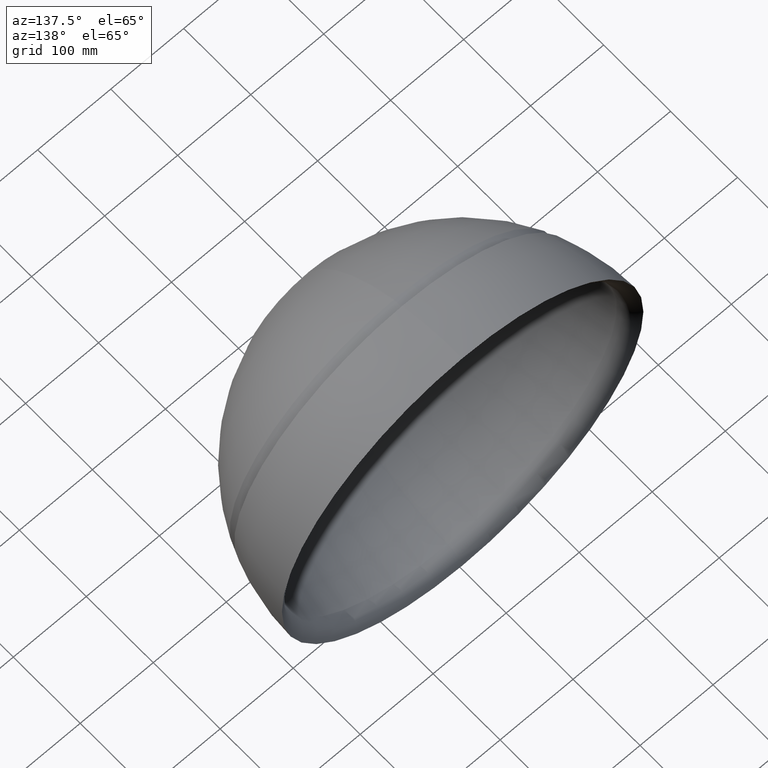
[diagram: clean part render]
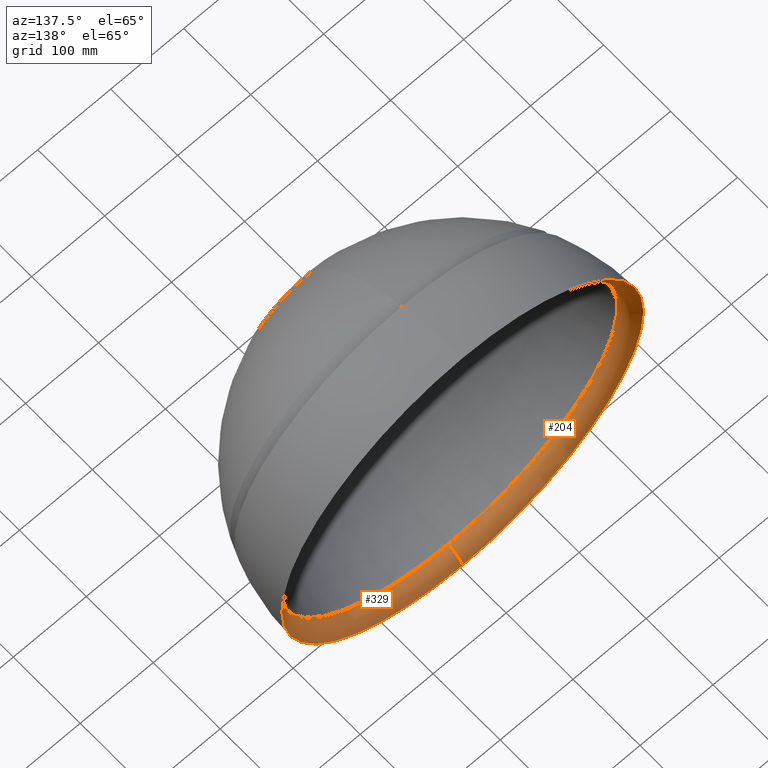
[diagram: same view with one multi-face feature highlighted, each face labeled with its STEP entity id]
A machine part, auxiliary view. The highlighted faces form ONE feature: a constant-radius fillet chain: 2 tangent blend faces with common blend radius 26.9572 mm. The faces share edges in the B-rep.
Their STEP definitions:
[1] entity #329 (Torus):
#14 = CIRCLE ( 'NONE', #197, 247.5000000000000000 ) ;
#28 = DIRECTION ( 'NONE',  ( 0.0000000000000000000, 0.0000000000000000000, -1.000000000000000000 ) ) ;
#39 = EDGE_LOOP ( 'NONE', ( #335, #185, #399, #343 ) ) ;
#66 = DIRECTION ( 'NONE',  ( 1.000000000000000000, 0.0000000000000000000, -1.224646799147353200E-016 ) ) ;
#69 = VERTEX_POINT ( 'NONE', #546 ) ;
#105 = CIRCLE ( 'NONE', #430, 231.3768428607466500 ) ;
#115 = VERTEX_POINT ( 'NONE', #380 ) ;
#122 = EDGE_CURVE ( 'NONE', #115, #133, #14, .T. ) ;
#126 = FACE_OUTER_BOUND ( 'NONE', #39, .T. ) ;
#133 = VERTEX_POINT ( 'NONE', #316 ) ;
#136 = TOROIDAL_SURFACE ( 'NONE', #154, 258.1938586785503800, 26.95717112091865200 ) ;
#154 = AXIS2_PLACEMENT_3D ( 'NONE', #222, #597, #28 ) ;
#185 = ORIENTED_EDGE ( 'NONE', *, *, #423, .T. ) ;
#197 = AXIS2_PLACEMENT_3D ( 'NONE', #277, #244, #307 ) ;
#208 = CIRCLE ( 'NONE', #481, 26.95717112091866600 ) ;
#211 = DIRECTION ( 'NONE',  ( -0.0000000000000000000, -1.000000000000000000, -0.0000000000000000000 ) ) ;
#222 = CARTESIAN_POINT ( 'NONE',  ( 0.0000000000000000000, 210.2546880923742100, 0.0000000000000000000 ) ) ;
#224 = DIRECTION ( 'NONE',  ( 0.0000000000000000000, 0.0000000000000000000, -1.000000000000000000 ) ) ;
#229 = CARTESIAN_POINT ( 'NONE',  ( 0.0000000000000000000, 213.0000000000000300, 0.0000000000000000000 ) ) ;
#230 = DIRECTION ( 'NONE',  ( 0.0000000000000000000, 0.0000000000000000000, 1.000000000000000000 ) ) ;
#238 = CARTESIAN_POINT ( 'NONE',  ( 0.0000000000000000000, 210.2546880923742100, -258.1938586785503800 ) ) ;
#244 = DIRECTION ( 'NONE',  ( -0.0000000000000000000, -1.000000000000000000, -0.0000000000000000000 ) ) ;
#277 = CARTESIAN_POINT ( 'NONE',  ( 0.0000000000000000000, 235.0000000000000300, 0.0000000000000000000 ) ) ;
#307 = DIRECTION ( 'NONE',  ( 0.0000000000000000000, 0.0000000000000000000, -1.000000000000000000 ) ) ;
#316 = CARTESIAN_POINT ( 'NONE',  ( 3.031000827889700600E-014, 235.0000000000000300, 247.5000000000001100 ) ) ;
#329 = ADVANCED_FACE ( 'NONE', ( #126 ), #136, .T. ) ;
#335 = ORIENTED_EDGE ( 'NONE', *, *, #527, .T. ) ;
#343 = ORIENTED_EDGE ( 'NONE', *, *, #470, .F. ) ;
#348 = DIRECTION ( 'NONE',  ( -1.000000000000000000, 0.0000000000000000000, 0.0000000000000000000 ) ) ;
#380 = CARTESIAN_POINT ( 'NONE',  ( 0.0000000000000000000, 235.0000000000000300, -247.5000000000001100 ) ) ;
#399 = ORIENTED_EDGE ( 'NONE', *, *, #122, .F. ) ;
#404 = CARTESIAN_POINT ( 'NONE',  ( 0.0000000000000000000, 213.0000000000000300, -231.3768428607466500 ) ) ;
#415 = CARTESIAN_POINT ( 'NONE',  ( 3.161962825901907600E-014, 210.2546880923742100, 258.1938586785503800 ) ) ;
#423 = EDGE_CURVE ( 'NONE', #69, #133, #429, .T. ) ;
#429 = CIRCLE ( 'NONE', #501, 26.95717112091866600 ) ;
#430 = AXIS2_PLACEMENT_3D ( 'NONE', #229, #211, #224 ) ;
#466 = DIRECTION ( 'NONE',  ( -1.224646799147352200E-016, 0.0000000000000000000, -1.000000000000000000 ) ) ;
#470 = EDGE_CURVE ( 'NONE', #596, #115, #208, .T. ) ;
#481 = AXIS2_PLACEMENT_3D ( 'NONE', #238, #348, #230 ) ;
#501 = AXIS2_PLACEMENT_3D ( 'NONE', #415, #66, #466 ) ;
#527 = EDGE_CURVE ( 'NONE', #596, #69, #105, .T. ) ;
#546 = CARTESIAN_POINT ( 'NONE',  ( 2.932274963976017900E-014, 213.0000000000000300, 231.3768428607466800 ) ) ;
#596 = VERTEX_POINT ( 'NONE', #404 ) ;
#597 = DIRECTION ( 'NONE',  ( -0.0000000000000000000, -1.000000000000000000, -0.0000000000000000000 ) ) ;
[2] entity #204 (Torus):
#6 = ORIENTED_EDGE ( 'NONE', *, *, #407, .T. ) ;
#61 = AXIS2_PLACEMENT_3D ( 'NONE', #336, #286, #337 ) ;
#66 = DIRECTION ( 'NONE',  ( 1.000000000000000000, 0.0000000000000000000, -1.224646799147353200E-016 ) ) ;
#69 = VERTEX_POINT ( 'NONE', #546 ) ;
#115 = VERTEX_POINT ( 'NONE', #380 ) ;
#125 = CIRCLE ( 'NONE', #221, 231.3768428607466500 ) ;
#130 = TOROIDAL_SURFACE ( 'NONE', #61, 258.1938586785503800, 26.95717112091865200 ) ;
#133 = VERTEX_POINT ( 'NONE', #316 ) ;
#144 = EDGE_LOOP ( 'NONE', ( #542, #6, #193, #516 ) ) ;
#149 = CIRCLE ( 'NONE', #249, 247.5000000000000000 ) ;
#193 = ORIENTED_EDGE ( 'NONE', *, *, #470, .T. ) ;
#204 = ADVANCED_FACE ( 'NONE', ( #223 ), #130, .T. ) ;
#208 = CIRCLE ( 'NONE', #481, 26.95717112091866600 ) ;
#221 = AXIS2_PLACEMENT_3D ( 'NONE', #564, #504, #241 ) ;
#223 = FACE_OUTER_BOUND ( 'NONE', #144, .T. ) ;
#230 = DIRECTION ( 'NONE',  ( 0.0000000000000000000, 0.0000000000000000000, 1.000000000000000000 ) ) ;
#238 = CARTESIAN_POINT ( 'NONE',  ( 0.0000000000000000000, 210.2546880923742100, -258.1938586785503800 ) ) ;
#241 = DIRECTION ( 'NONE',  ( 0.0000000000000000000, 0.0000000000000000000, -1.000000000000000000 ) ) ;
#249 = AXIS2_PLACEMENT_3D ( 'NONE', #350, #356, #403 ) ;
#286 = DIRECTION ( 'NONE',  ( -0.0000000000000000000, -1.000000000000000000, -0.0000000000000000000 ) ) ;
#316 = CARTESIAN_POINT ( 'NONE',  ( 3.031000827889700600E-014, 235.0000000000000300, 247.5000000000001100 ) ) ;
#336 = CARTESIAN_POINT ( 'NONE',  ( 0.0000000000000000000, 210.2546880923742100, 0.0000000000000000000 ) ) ;
#337 = DIRECTION ( 'NONE',  ( 0.0000000000000000000, 0.0000000000000000000, -1.000000000000000000 ) ) ;
#348 = DIRECTION ( 'NONE',  ( -1.000000000000000000, 0.0000000000000000000, 0.0000000000000000000 ) ) ;
#350 = CARTESIAN_POINT ( 'NONE',  ( 0.0000000000000000000, 235.0000000000000300, 0.0000000000000000000 ) ) ;
#356 = DIRECTION ( 'NONE',  ( -0.0000000000000000000, -1.000000000000000000, -0.0000000000000000000 ) ) ;
#359 = EDGE_CURVE ( 'NONE', #133, #115, #149, .T. ) ;
#380 = CARTESIAN_POINT ( 'NONE',  ( 0.0000000000000000000, 235.0000000000000300, -247.5000000000001100 ) ) ;
#403 = DIRECTION ( 'NONE',  ( 0.0000000000000000000, 0.0000000000000000000, -1.000000000000000000 ) ) ;
#404 = CARTESIAN_POINT ( 'NONE',  ( 0.0000000000000000000, 213.0000000000000300, -231.3768428607466500 ) ) ;
#407 = EDGE_CURVE ( 'NONE', #69, #596, #125, .T. ) ;
#415 = CARTESIAN_POINT ( 'NONE',  ( 3.161962825901907600E-014, 210.2546880923742100, 258.1938586785503800 ) ) ;
#423 = EDGE_CURVE ( 'NONE', #69, #133, #429, .T. ) ;
#429 = CIRCLE ( 'NONE', #501, 26.95717112091866600 ) ;
#466 = DIRECTION ( 'NONE',  ( -1.224646799147352200E-016, 0.0000000000000000000, -1.000000000000000000 ) ) ;
#470 = EDGE_CURVE ( 'NONE', #596, #115, #208, .T. ) ;
#481 = AXIS2_PLACEMENT_3D ( 'NONE', #238, #348, #230 ) ;
#501 = AXIS2_PLACEMENT_3D ( 'NONE', #415, #66, #466 ) ;
#504 = DIRECTION ( 'NONE',  ( -0.0000000000000000000, -1.000000000000000000, -0.0000000000000000000 ) ) ;
#516 = ORIENTED_EDGE ( 'NONE', *, *, #359, .F. ) ;
#542 = ORIENTED_EDGE ( 'NONE', *, *, #423, .F. ) ;
#546 = CARTESIAN_POINT ( 'NONE',  ( 2.932274963976017900E-014, 213.0000000000000300, 231.3768428607466800 ) ) ;
#564 = CARTESIAN_POINT ( 'NONE',  ( 0.0000000000000000000, 213.0000000000000300, 0.0000000000000000000 ) ) ;
#596 = VERTEX_POINT ( 'NONE', #404 ) ;